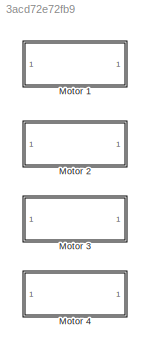
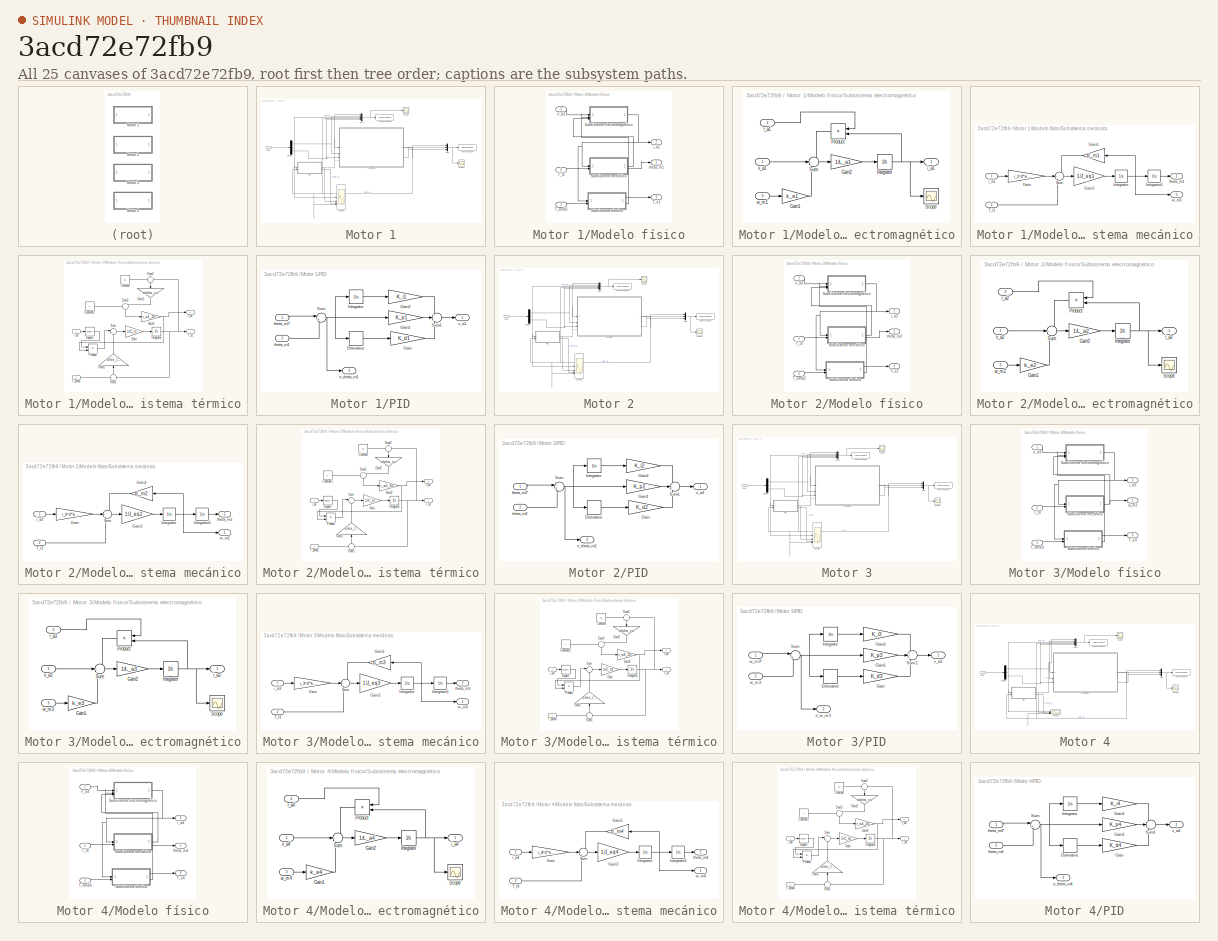
[diagram: thumbnail index - all 25 canvases of the model, root first then tree order]
MODEL slx_3acd72e72fb9
KIND model
CONFIG AbsTol = auto
CONFIG EnableMultiTasking = off
CONFIG FixedStep = auto
CONFIG MaxStep = auto
CONFIG MinStep = auto
CONFIG RelTol = 1e-3
CONFIG SampleTimeConstraint = Unconstrained
CONFIG SolverName = VariableStepAuto
CONFIG StartTime = 0.0
CONFIG StopTime = 10.0
BLOCK [SubSystem] Motor 1
BLOCK [Demux] Motor 1/Demux
  Outputs = 3
BLOCK [Inport] Motor 1/Input
BLOCK [SubSystem] Motor 1/Modelo físico
BLOCK [SubSystem] Motor 1/Modelo físico/Subsistema electromagnético
BLOCK [Gain] Motor 1/Modelo físico/Subsistema electromagnético/Gain1
  Gain = k_e1
BLOCK [Gain] Motor 1/Modelo físico/Subsistema electromagnético/Gain2
  Gain = 1/L_a1
BLOCK [Integrator] Motor 1/Modelo físico/Subsistema electromagnético/Integrator
BLOCK [Product] Motor 1/Modelo físico/Subsistema electromagnético/Product
  NameLocation = top
BLOCK [Scope] Motor 1/Modelo físico/Subsistema electromagnético/Scope
  Floating = off
  NumInputPorts = 1
  ScopeSpecificationString = Simulink.scopes.TimeScopeBlockCfg('CurrentConfiguration', extmgr.ConfigurationSet(extmgr.Configuration('Core','General UI',true),extmgr.Configuration('Core','Source UI',true),extmgr.Configuration('Sources','WiredSimulink',true,'DataLoggingVariableName','ScopeData2'),extmgr.Configuration('Visuals','Time Domain',true,'SerializedDisplays',{struct('MinYLimReal','-23.42473','MaxYLimReal','57.18803','YL...<+1430ch>  <repeated x4 — deduplicated; at blocks: Scope>
BLOCK [Sum] Motor 1/Modelo físico/Subsistema electromagnético/Sum
  Inputs = -+-
BLOCK [Outport] Motor 1/Modelo físico/Subsistema electromagnético/i_a1
BLOCK [Inport] Motor 1/Modelo físico/Subsistema electromagnético/r_a1
  Port = 2
BLOCK [Inport] Motor 1/Modelo físico/Subsistema electromagnético/v_a1
BLOCK [Inport] Motor 1/Modelo físico/Subsistema electromagnético/w_m1
  Port = 3
BLOCK [SubSystem] Motor 1/Modelo físico/Subsistema mecánico
BLOCK [Gain] Motor 1/Modelo físico/Subsistema mecánico/Gain
  Gain = r_1^2*k_t1
BLOCK [Gain] Motor 1/Modelo físico/Subsistema mecánico/Gain1
  Gain = b_m1
  NameLocation = top
BLOCK [Gain] Motor 1/Modelo físico/Subsistema mecánico/Gain3
  Gain = 1/J_eq1
BLOCK [Integrator] Motor 1/Modelo físico/Subsistema mecánico/Integrator
BLOCK [Integrator] Motor 1/Modelo físico/Subsistema mecánico/Integrator1
  InitialCondition = theta_m0_1
BLOCK [Sum] Motor 1/Modelo físico/Subsistema mecánico/Sum
  Inputs = -+-
BLOCK [Inport] Motor 1/Modelo físico/Subsistema mecánico/T_l1
  Port = 2
BLOCK [Inport] Motor 1/Modelo físico/Subsistema mecánico/i_a1
BLOCK [Outport] Motor 1/Modelo físico/Subsistema mecánico/theta_m1
  Port = 2
BLOCK [Outport] Motor 1/Modelo físico/Subsistema mecánico/w_m1
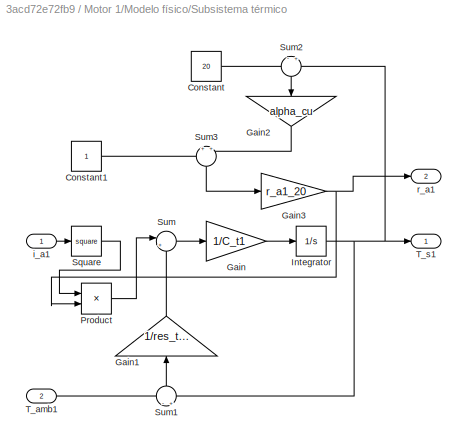
BLOCK [SubSystem] Motor 1/Modelo físico/Subsistema térmico
BLOCK [Constant] Motor 1/Modelo físico/Subsistema térmico/Constant
  Value = 20
BLOCK [Constant] Motor 1/Modelo físico/Subsistema térmico/Constant1
BLOCK [Gain] Motor 1/Modelo físico/Subsistema térmico/Gain
  Gain = 1/C_t1
BLOCK [Gain] Motor 1/Modelo físico/Subsistema térmico/Gain1
  Gain = 1/res_term_1
  NameLocation = right
BLOCK [Gain] Motor 1/Modelo físico/Subsistema térmico/Gain2
  Gain = alpha_cu
  NameLocation = left
BLOCK [Gain] Motor 1/Modelo físico/Subsistema térmico/Gain3
  Gain = r_a1_20
BLOCK [Integrator] Motor 1/Modelo físico/Subsistema térmico/Integrator
  InitialCondition = T_s0_1
BLOCK [Product] Motor 1/Modelo físico/Subsistema térmico/Product
BLOCK [Math] Motor 1/Modelo físico/Subsistema térmico/Square
  Operator = square
BLOCK [Sum] Motor 1/Modelo físico/Subsistema térmico/Sum
  Inputs = |+-
BLOCK [Sum] Motor 1/Modelo físico/Subsistema térmico/Sum1
  Inputs = -|+
  NameLocation = right
BLOCK [Sum] Motor 1/Modelo físico/Subsistema térmico/Sum2
  Inputs = -|+
  NameLocation = left
BLOCK [Sum] Motor 1/Modelo físico/Subsistema térmico/Sum3
  Inputs = +|+
  NameLocation = left
BLOCK [Inport] Motor 1/Modelo físico/Subsistema térmico/T_amb1
  Port = 2
BLOCK [Outport] Motor 1/Modelo físico/Subsistema térmico/T_s1
BLOCK [Inport] Motor 1/Modelo físico/Subsistema térmico/i_a1
BLOCK [Outport] Motor 1/Modelo físico/Subsistema térmico/r_a1
  Port = 2
BLOCK [Inport] Motor 1/Modelo físico/T_amb1
  Port = 3
BLOCK [Inport] Motor 1/Modelo físico/T_l1
  Port = 2
BLOCK [Outport] Motor 1/Modelo físico/T_s1
  Port = 3
BLOCK [Outport] Motor 1/Modelo físico/i_a1
  Port = 2
BLOCK [Outport] Motor 1/Modelo físico/theta_m1
BLOCK [Inport] Motor 1/Modelo físico/v_a1
BLOCK [Mux] Motor 1/Mux
  DisplayOption = bar
  Inputs = 3
BLOCK [Mux] Motor 1/Mux1
  DisplayOption = bar
  Inputs = 5
BLOCK [SubSystem] Motor 1/PID
BLOCK [Derivative] Motor 1/PID/Derivative
BLOCK [Gain] Motor 1/PID/Gain
  Gain = K_d1
BLOCK [Gain] Motor 1/PID/Gain1
  Gain = K_p1
BLOCK [Gain] Motor 1/PID/Gain2
  Gain = K_i1
BLOCK [Integrator] Motor 1/PID/Integrator
BLOCK [Sum] Motor 1/PID/Sum
  Inputs = |+-
BLOCK [Sum] Motor 1/PID/Sum1
  Inputs = +++
BLOCK [Outport] Motor 1/PID/e_theta_m1
  Port = 2
BLOCK [Inport] Motor 1/PID/theta_m1
  Port = 2
BLOCK [Inport] Motor 1/PID/theta_m1*
BLOCK [Outport] Motor 1/PID/v_a1
BLOCK [Scope] Motor 1/Scope
  Floating = off
  NumInputPorts = 1
  ScopeSpecificationString = Simulink.scopes.TimeScopeBlockCfg('CurrentConfiguration', extmgr.ConfigurationSet(extmgr.Configuration('Core','General UI',true),extmgr.Configuration('Core','Source UI',true),extmgr.Configuration('Sources','WiredSimulink',true,'DataLoggingVariableName','ScopeData1'),extmgr.Configuration('Visuals','Time Domain',true,'SerializedDisplays',{struct('MinYLimReal','6.59338','MaxYLimReal','22.19819','YLab...<+1469ch>
BLOCK [Scope] Motor 1/Scope1
  Floating = off
  NumInputPorts = 1
  ScopeSpecificationString = Simulink.scopes.TimeScopeBlockCfg('CurrentConfiguration', extmgr.ConfigurationSet(extmgr.Configuration('Core','General UI',true),extmgr.Configuration('Core','Source UI',true),extmgr.Configuration('Sources','WiredSimulink',true,'DataLoggingVariableName','ScopeData2'),extmgr.Configuration('Visuals','Time Domain',true,'SerializedDisplays',{struct('MinYLimReal','-1748379.89318','MaxYLimReal','15621771...<+1547ch>
BLOCK [Scope] Motor 1/Scope2
  Floating = off
  NumInputPorts = 4
  ScopeSpecificationString = Simulink.scopes.TimeScopeBlockCfg('CurrentConfiguration', extmgr.ConfigurationSet(extmgr.Configuration('Core','General UI',true),extmgr.Configuration('Core','Source UI',true),extmgr.Configuration('Sources','WiredSimulink',true,'DataLoggingVariableName','ScopeData3'),extmgr.Configuration('Visuals','Time Domain',true,'SerializedDisplays',{struct('MinYLimReal','-4731421.02253','MaxYLimReal','22714130...<+1659ch>
BLOCK [ToWorkspace] Motor 1/To Workspace
  FixptAsFi = on
  MaxDataPoints = inf
  SampleTime = -1
  SaveFormat = Timeseries
  VariableName = simulationOut
BLOCK [ToWorkspace] Motor 1/To Workspace1
  FixptAsFi = on
  MaxDataPoints = inf
  SampleTime = -1
  SaveFormat = Timeseries
  VariableName = simulationIn
BLOCK [SubSystem] Motor 2
BLOCK [Demux] Motor 2/Demux
  Outputs = 3
BLOCK [Inport] Motor 2/Input
BLOCK [SubSystem] Motor 2/Modelo físico
BLOCK [SubSystem] Motor 2/Modelo físico/Subsistema electromagnético
BLOCK [Gain] Motor 2/Modelo físico/Subsistema electromagnético/Gain1
  Gain = k_e2
BLOCK [Gain] Motor 2/Modelo físico/Subsistema electromagnético/Gain2
  Gain = 1/L_a2
BLOCK [Integrator] Motor 2/Modelo físico/Subsistema electromagnético/Integrator
BLOCK [Product] Motor 2/Modelo físico/Subsistema electromagnético/Product
  NameLocation = top
BLOCK [Scope] Motor 2/Modelo físico/Subsistema electromagnético/Scope
  Floating = off
  NumInputPorts = 1
BLOCK [Sum] Motor 2/Modelo físico/Subsistema electromagnético/Sum
  Inputs = -+-
BLOCK [Outport] Motor 2/Modelo físico/Subsistema electromagnético/i_a2
BLOCK [Inport] Motor 2/Modelo físico/Subsistema electromagnético/r_a2
  Port = 2
BLOCK [Inport] Motor 2/Modelo físico/Subsistema electromagnético/v_a2
BLOCK [Inport] Motor 2/Modelo físico/Subsistema electromagnético/w_m2
  Port = 3
BLOCK [SubSystem] Motor 2/Modelo físico/Subsistema mecánico
BLOCK [Gain] Motor 2/Modelo físico/Subsistema mecánico/Gain
  Gain = r_2^2*k_t2
BLOCK [Gain] Motor 2/Modelo físico/Subsistema mecánico/Gain1
  Gain = b_m2
  NameLocation = top
BLOCK [Gain] Motor 2/Modelo físico/Subsistema mecánico/Gain3
  Gain = 1/J_eq2
BLOCK [Integrator] Motor 2/Modelo físico/Subsistema mecánico/Integrator
BLOCK [Integrator] Motor 2/Modelo físico/Subsistema mecánico/Integrator1
  InitialCondition = theta_m0_2
BLOCK [Sum] Motor 2/Modelo físico/Subsistema mecánico/Sum
  Inputs = -+-
BLOCK [Inport] Motor 2/Modelo físico/Subsistema mecánico/T_l2
  Port = 2
BLOCK [Inport] Motor 2/Modelo físico/Subsistema mecánico/i_a2
BLOCK [Outport] Motor 2/Modelo físico/Subsistema mecánico/theta_m2
  Port = 2
BLOCK [Outport] Motor 2/Modelo físico/Subsistema mecánico/w_m2
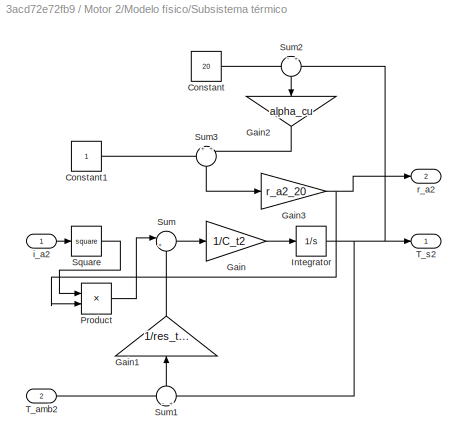
BLOCK [SubSystem] Motor 2/Modelo físico/Subsistema térmico
BLOCK [Constant] Motor 2/Modelo físico/Subsistema térmico/Constant
  Value = 20
BLOCK [Constant] Motor 2/Modelo físico/Subsistema térmico/Constant1
BLOCK [Gain] Motor 2/Modelo físico/Subsistema térmico/Gain
  Gain = 1/C_t2
BLOCK [Gain] Motor 2/Modelo físico/Subsistema térmico/Gain1
  Gain = 1/res_term_2
  NameLocation = right
BLOCK [Gain] Motor 2/Modelo físico/Subsistema térmico/Gain2
  Gain = alpha_cu
  NameLocation = left
BLOCK [Gain] Motor 2/Modelo físico/Subsistema térmico/Gain3
  Gain = r_a2_20
BLOCK [Integrator] Motor 2/Modelo físico/Subsistema térmico/Integrator
  InitialCondition = T_s0_2
BLOCK [Product] Motor 2/Modelo físico/Subsistema térmico/Product
BLOCK [Math] Motor 2/Modelo físico/Subsistema térmico/Square
  Operator = square
BLOCK [Sum] Motor 2/Modelo físico/Subsistema térmico/Sum
  Inputs = |+-
BLOCK [Sum] Motor 2/Modelo físico/Subsistema térmico/Sum1
  Inputs = -|+
  NameLocation = right
BLOCK [Sum] Motor 2/Modelo físico/Subsistema térmico/Sum2
  Inputs = -|+
  NameLocation = left
BLOCK [Sum] Motor 2/Modelo físico/Subsistema térmico/Sum3
  Inputs = +|+
  NameLocation = left
BLOCK [Inport] Motor 2/Modelo físico/Subsistema térmico/T_amb2
  Port = 2
BLOCK [Outport] Motor 2/Modelo físico/Subsistema térmico/T_s2
BLOCK [Inport] Motor 2/Modelo físico/Subsistema térmico/i_a2
BLOCK [Outport] Motor 2/Modelo físico/Subsistema térmico/r_a2
  Port = 2
BLOCK [Inport] Motor 2/Modelo físico/T_amb2
  Port = 3
BLOCK [Inport] Motor 2/Modelo físico/T_l2
  Port = 2
BLOCK [Outport] Motor 2/Modelo físico/T_s2
  Port = 3
BLOCK [Outport] Motor 2/Modelo físico/i_a2
  Port = 2
BLOCK [Outport] Motor 2/Modelo físico/theta_m2
BLOCK [Inport] Motor 2/Modelo físico/v_a2
BLOCK [Mux] Motor 2/Mux
  DisplayOption = bar
  Inputs = 3
BLOCK [Mux] Motor 2/Mux1
  DisplayOption = bar
  Inputs = 5
BLOCK [SubSystem] Motor 2/PID
BLOCK [Derivative] Motor 2/PID/Derivative
BLOCK [Gain] Motor 2/PID/Gain
  Gain = K_d2
BLOCK [Gain] Motor 2/PID/Gain1
  Gain = K_p2
BLOCK [Gain] Motor 2/PID/Gain2
  Gain = K_i2
BLOCK [Integrator] Motor 2/PID/Integrator
BLOCK [Sum] Motor 2/PID/Sum
  Inputs = |+-
BLOCK [Sum] Motor 2/PID/Sum1
  Inputs = +++
BLOCK [Outport] Motor 2/PID/e_theta_m2
  Port = 2
BLOCK [Inport] Motor 2/PID/theta_m2
  Port = 2
BLOCK [Inport] Motor 2/PID/theta_m2*
BLOCK [Outport] Motor 2/PID/v_a2
BLOCK [Scope] Motor 2/Scope
  Floating = off
  NumInputPorts = 1
  ScopeSpecificationString = Simulink.scopes.TimeScopeBlockCfg('CurrentConfiguration', extmgr.ConfigurationSet(extmgr.Configuration('Core','General UI',true),extmgr.Configuration('Core','Source UI',true),extmgr.Configuration('Sources','WiredSimulink',true,'DataLoggingVariableName','ScopeData4'),extmgr.Configuration('Visuals','Time Domain',true,'SerializedDisplays',{struct('MinYLimReal','6.59338','MaxYLimReal','22.19819','YLab...<+1469ch>
BLOCK [Scope] Motor 2/Scope1
  Floating = off
  NumInputPorts = 1
  ScopeSpecificationString = Simulink.scopes.TimeScopeBlockCfg('CurrentConfiguration', extmgr.ConfigurationSet(extmgr.Configuration('Core','General UI',true),extmgr.Configuration('Core','Source UI',true),extmgr.Configuration('Sources','WiredSimulink',true,'DataLoggingVariableName','ScopeData5'),extmgr.Configuration('Visuals','Time Domain',true,'SerializedDisplays',{struct('MinYLimReal','-1748379.89318','MaxYLimReal','15621771...<+1547ch>
BLOCK [Scope] Motor 2/Scope2
  Floating = off
  NumInputPorts = 4
  ScopeSpecificationString = Simulink.scopes.TimeScopeBlockCfg('CurrentConfiguration', extmgr.ConfigurationSet(extmgr.Configuration('Core','General UI',true),extmgr.Configuration('Core','Source UI',true),extmgr.Configuration('Sources','WiredSimulink',true,'DataLoggingVariableName','ScopeData6'),extmgr.Configuration('Visuals','Time Domain',true,'SerializedDisplays',{struct('MinYLimReal','-145131.2899','MaxYLimReal','97316.8510...<+1641ch>
BLOCK [ToWorkspace] Motor 2/To Workspace
  FixptAsFi = on
  MaxDataPoints = inf
  SampleTime = -1
  SaveFormat = Timeseries
  VariableName = simulationOut1
BLOCK [ToWorkspace] Motor 2/To Workspace1
  FixptAsFi = on
  MaxDataPoints = inf
  SampleTime = -1
  SaveFormat = Timeseries
  VariableName = simulationIn1
BLOCK [SubSystem] Motor 3
BLOCK [Demux] Motor 3/Demux
  Outputs = 3
BLOCK [Inport] Motor 3/Input
BLOCK [SubSystem] Motor 3/Modelo físico
BLOCK [SubSystem] Motor 3/Modelo físico/Subsistema electromagnético
BLOCK [Gain] Motor 3/Modelo físico/Subsistema electromagnético/Gain1
  Gain = k_e3
BLOCK [Gain] Motor 3/Modelo físico/Subsistema electromagnético/Gain2
  Gain = 1/L_a3
BLOCK [Integrator] Motor 3/Modelo físico/Subsistema electromagnético/Integrator
BLOCK [Product] Motor 3/Modelo físico/Subsistema electromagnético/Product
  NameLocation = top
BLOCK [Scope] Motor 3/Modelo físico/Subsistema electromagnético/Scope
  Floating = off
  NumInputPorts = 1
BLOCK [Sum] Motor 3/Modelo físico/Subsistema electromagnético/Sum
  Inputs = -+-
BLOCK [Outport] Motor 3/Modelo físico/Subsistema electromagnético/i_a3
BLOCK [Inport] Motor 3/Modelo físico/Subsistema electromagnético/r_a3
  Port = 2
BLOCK [Inport] Motor 3/Modelo físico/Subsistema electromagnético/v_a3
BLOCK [Inport] Motor 3/Modelo físico/Subsistema electromagnético/w_m3
  Port = 3
BLOCK [SubSystem] Motor 3/Modelo físico/Subsistema mecánico
BLOCK [Gain] Motor 3/Modelo físico/Subsistema mecánico/Gain
  Gain = r_3^2*k_t3
BLOCK [Gain] Motor 3/Modelo físico/Subsistema mecánico/Gain1
  Gain = b_m3
  NameLocation = top
BLOCK [Gain] Motor 3/Modelo físico/Subsistema mecánico/Gain3
  Gain = 1/J_eq3
BLOCK [Integrator] Motor 3/Modelo físico/Subsistema mecánico/Integrator
  InitialCondition = w_m3_0
BLOCK [Integrator] Motor 3/Modelo físico/Subsistema mecánico/Integrator1
BLOCK [Sum] Motor 3/Modelo físico/Subsistema mecánico/Sum
  Inputs = -+-
BLOCK [Inport] Motor 3/Modelo físico/Subsistema mecánico/T_l3
  Port = 2
BLOCK [Inport] Motor 3/Modelo físico/Subsistema mecánico/i_a3
BLOCK [Outport] Motor 3/Modelo físico/Subsistema mecánico/theta_m3
  Port = 2
BLOCK [Outport] Motor 3/Modelo físico/Subsistema mecánico/w_m3
BLOCK [SubSystem] Motor 3/Modelo físico/Subsistema térmico
BLOCK [Constant] Motor 3/Modelo físico/Subsistema térmico/Constant
  Value = 20
BLOCK [Constant] Motor 3/Modelo físico/Subsistema térmico/Constant1
BLOCK [Gain] Motor 3/Modelo físico/Subsistema térmico/Gain
  Gain = 1/C_t3
BLOCK [Gain] Motor 3/Modelo físico/Subsistema térmico/Gain1
  Gain = 1/res_term_3
  NameLocation = right
BLOCK [Gain] Motor 3/Modelo físico/Subsistema térmico/Gain2
  Gain = alpha_cu
  NameLocation = left
BLOCK [Gain] Motor 3/Modelo físico/Subsistema térmico/Gain3
  Gain = r_a3_20
BLOCK [Integrator] Motor 3/Modelo físico/Subsistema térmico/Integrator
BLOCK [Product] Motor 3/Modelo físico/Subsistema térmico/Product
BLOCK [Math] Motor 3/Modelo físico/Subsistema térmico/Square
  Operator = square
BLOCK [Sum] Motor 3/Modelo físico/Subsistema térmico/Sum
  Inputs = |+-
BLOCK [Sum] Motor 3/Modelo físico/Subsistema térmico/Sum1
  Inputs = -|+
  NameLocation = right
BLOCK [Sum] Motor 3/Modelo físico/Subsistema térmico/Sum2
  Inputs = -|+
  NameLocation = left
BLOCK [Sum] Motor 3/Modelo físico/Subsistema térmico/Sum3
  Inputs = +|+
  NameLocation = left
BLOCK [Inport] Motor 3/Modelo físico/Subsistema térmico/T_amb3
  Port = 2
BLOCK [Outport] Motor 3/Modelo físico/Subsistema térmico/T_s3
BLOCK [Inport] Motor 3/Modelo físico/Subsistema térmico/i_a3
BLOCK [Outport] Motor 3/Modelo físico/Subsistema térmico/r_a3
  Port = 2
BLOCK [Inport] Motor 3/Modelo físico/T_amb3
  Port = 3
BLOCK [Inport] Motor 3/Modelo físico/T_l3
  Port = 2
BLOCK [Outport] Motor 3/Modelo físico/T_s3
  Port = 3
BLOCK [Outport] Motor 3/Modelo físico/i_a3
  Port = 2
BLOCK [Inport] Motor 3/Modelo físico/v_a3
BLOCK [Outport] Motor 3/Modelo físico/w_m3
BLOCK [Mux] Motor 3/Mux
  DisplayOption = bar
  Inputs = 3
BLOCK [Mux] Motor 3/Mux1
  DisplayOption = bar
  Inputs = 5
BLOCK [SubSystem] Motor 3/PID
BLOCK [Derivative] Motor 3/PID/Derivative
BLOCK [Gain] Motor 3/PID/Gain
  Gain = K_d3
BLOCK [Gain] Motor 3/PID/Gain1
  Gain = K_p3
BLOCK [Gain] Motor 3/PID/Gain2
  Gain = K_i3
BLOCK [Integrator] Motor 3/PID/Integrator
BLOCK [Sum] Motor 3/PID/Sum
  Inputs = |+-
BLOCK [Sum] Motor 3/PID/Sum1
  Inputs = +++
BLOCK [Outport] Motor 3/PID/e_w_m3
  Port = 2
BLOCK [Outport] Motor 3/PID/v_a3
BLOCK [Inport] Motor 3/PID/w_m3
  Port = 2
BLOCK [Inport] Motor 3/PID/w_m3*
BLOCK [Scope] Motor 3/Scope
  Floating = off
  NumInputPorts = 1
  ScopeSpecificationString = Simulink.scopes.TimeScopeBlockCfg('CurrentConfiguration', extmgr.ConfigurationSet(extmgr.Configuration('Core','General UI',true),extmgr.Configuration('Core','Source UI',true),extmgr.Configuration('Sources','WiredSimulink',true,'DataLoggingVariableName','ScopeData7'),extmgr.Configuration('Visuals','Time Domain',true,'SerializedDisplays',{struct('MinYLimReal','6.59338','MaxYLimReal','22.19819','YLab...<+1469ch>
BLOCK [Scope] Motor 3/Scope1
  Floating = off
  NumInputPorts = 1
  ScopeSpecificationString = Simulink.scopes.TimeScopeBlockCfg('CurrentConfiguration', extmgr.ConfigurationSet(extmgr.Configuration('Core','General UI',true),extmgr.Configuration('Core','Source UI',true),extmgr.Configuration('Sources','WiredSimulink',true,'DataLoggingVariableName','ScopeData8'),extmgr.Configuration('Visuals','Time Domain',true,'SerializedDisplays',{struct('MinYLimReal','-13987.64888','MaxYLimReal','125888.839...<+1527ch>
BLOCK [Scope] Motor 3/Scope2
  Floating = off
  NumInputPorts = 4
  ScopeSpecificationString = Simulink.scopes.TimeScopeBlockCfg('CurrentConfiguration', extmgr.ConfigurationSet(extmgr.Configuration('Core','General UI',true),extmgr.Configuration('Core','Source UI',true),extmgr.Configuration('Sources','WiredSimulink',true,'DataLoggingVariableName','ScopeData9'),extmgr.Configuration('Visuals','Time Domain',true,'SerializedDisplays',{struct('MinYLimReal','-214.51675','MaxYLimReal','1929.48446',...<+1587ch>
BLOCK [ToWorkspace] Motor 3/To Workspace
  FixptAsFi = on
  MaxDataPoints = inf
  SampleTime = -1
  SaveFormat = Timeseries
  VariableName = simulationOut2
BLOCK [ToWorkspace] Motor 3/To Workspace1
  FixptAsFi = on
  MaxDataPoints = inf
  SampleTime = -1
  SaveFormat = Timeseries
  VariableName = simulationIn2
BLOCK [SubSystem] Motor 4
BLOCK [Demux] Motor 4/Demux
  Outputs = 3
BLOCK [Inport] Motor 4/Input
BLOCK [SubSystem] Motor 4/Modelo físico
BLOCK [SubSystem] Motor 4/Modelo físico/Subsistema electromagnético
BLOCK [Gain] Motor 4/Modelo físico/Subsistema electromagnético/Gain1
  Gain = k_e4
BLOCK [Gain] Motor 4/Modelo físico/Subsistema electromagnético/Gain2
  Gain = 1/L_a4
BLOCK [Integrator] Motor 4/Modelo físico/Subsistema electromagnético/Integrator
BLOCK [Product] Motor 4/Modelo físico/Subsistema electromagnético/Product
  NameLocation = top
BLOCK [Scope] Motor 4/Modelo físico/Subsistema electromagnético/Scope
  Floating = off
  NumInputPorts = 1
BLOCK [Sum] Motor 4/Modelo físico/Subsistema electromagnético/Sum
  Inputs = -+-
BLOCK [Outport] Motor 4/Modelo físico/Subsistema electromagnético/i_a4
BLOCK [Inport] Motor 4/Modelo físico/Subsistema electromagnético/r_a4
  Port = 2
BLOCK [Inport] Motor 4/Modelo físico/Subsistema electromagnético/v_a4
BLOCK [Inport] Motor 4/Modelo físico/Subsistema electromagnético/w_m4
  Port = 3
BLOCK [SubSystem] Motor 4/Modelo físico/Subsistema mecánico
BLOCK [Gain] Motor 4/Modelo físico/Subsistema mecánico/Gain
  Gain = r_4^2*k_t4
BLOCK [Gain] Motor 4/Modelo físico/Subsistema mecánico/Gain1
  Gain = b_m4
  NameLocation = top
BLOCK [Gain] Motor 4/Modelo físico/Subsistema mecánico/Gain3
  Gain = 1/J_eq4
BLOCK [Integrator] Motor 4/Modelo físico/Subsistema mecánico/Integrator
BLOCK [Integrator] Motor 4/Modelo físico/Subsistema mecánico/Integrator1
  InitialCondition = theta_m4_0
BLOCK [Sum] Motor 4/Modelo físico/Subsistema mecánico/Sum
  Inputs = -+-
BLOCK [Inport] Motor 4/Modelo físico/Subsistema mecánico/T_l4
  Port = 2
BLOCK [Inport] Motor 4/Modelo físico/Subsistema mecánico/i_a4
BLOCK [Outport] Motor 4/Modelo físico/Subsistema mecánico/theta_m4
  Port = 2
BLOCK [Outport] Motor 4/Modelo físico/Subsistema mecánico/w_m4
BLOCK [SubSystem] Motor 4/Modelo físico/Subsistema térmico
BLOCK [Constant] Motor 4/Modelo físico/Subsistema térmico/Constant
  Value = 20
BLOCK [Constant] Motor 4/Modelo físico/Subsistema térmico/Constant1
BLOCK [Gain] Motor 4/Modelo físico/Subsistema térmico/Gain
  Gain = 1/C_t4
BLOCK [Gain] Motor 4/Modelo físico/Subsistema térmico/Gain1
  Gain = 1/res_term_4
  NameLocation = right
BLOCK [Gain] Motor 4/Modelo físico/Subsistema térmico/Gain2
  Gain = alpha_cu
  NameLocation = left
BLOCK [Gain] Motor 4/Modelo físico/Subsistema térmico/Gain3
  Gain = r_a4_20
BLOCK [Integrator] Motor 4/Modelo físico/Subsistema térmico/Integrator
  InitialCondition = T_s4_0
BLOCK [Product] Motor 4/Modelo físico/Subsistema térmico/Product
BLOCK [Math] Motor 4/Modelo físico/Subsistema térmico/Square
  Operator = square
BLOCK [Sum] Motor 4/Modelo físico/Subsistema térmico/Sum
  Inputs = |+-
BLOCK [Sum] Motor 4/Modelo físico/Subsistema térmico/Sum1
  Inputs = -|+
  NameLocation = right
BLOCK [Sum] Motor 4/Modelo físico/Subsistema térmico/Sum2
  Inputs = -|+
  NameLocation = left
BLOCK [Sum] Motor 4/Modelo físico/Subsistema térmico/Sum3
  Inputs = +|+
  NameLocation = left
BLOCK [Inport] Motor 4/Modelo físico/Subsistema térmico/T_amb4
  Port = 2
BLOCK [Outport] Motor 4/Modelo físico/Subsistema térmico/T_s4
BLOCK [Inport] Motor 4/Modelo físico/Subsistema térmico/i_a4
BLOCK [Outport] Motor 4/Modelo físico/Subsistema térmico/r_a4
  Port = 2
BLOCK [Inport] Motor 4/Modelo físico/T_amb4
  Port = 3
BLOCK [Inport] Motor 4/Modelo físico/T_l4
  Port = 2
BLOCK [Outport] Motor 4/Modelo físico/T_s4
  Port = 3
BLOCK [Outport] Motor 4/Modelo físico/i_a4
  Port = 2
BLOCK [Outport] Motor 4/Modelo físico/theta_m4
BLOCK [Inport] Motor 4/Modelo físico/v_a4
BLOCK [Mux] Motor 4/Mux
  DisplayOption = bar
  Inputs = 3
BLOCK [Mux] Motor 4/Mux1
  DisplayOption = bar
  Inputs = 5
BLOCK [SubSystem] Motor 4/PID
BLOCK [Derivative] Motor 4/PID/Derivative
BLOCK [Gain] Motor 4/PID/Gain
  Gain = K_d4
BLOCK [Gain] Motor 4/PID/Gain1
  Gain = K_p4
BLOCK [Gain] Motor 4/PID/Gain2
  Gain = K_i4
BLOCK [Integrator] Motor 4/PID/Integrator
BLOCK [Sum] Motor 4/PID/Sum
  Inputs = |+-
BLOCK [Sum] Motor 4/PID/Sum1
  Inputs = +++
BLOCK [Outport] Motor 4/PID/e_theta_m4
  Port = 2
BLOCK [Inport] Motor 4/PID/theta_m4
  Port = 2
BLOCK [Inport] Motor 4/PID/theta_m4*
BLOCK [Outport] Motor 4/PID/v_a4
BLOCK [Scope] Motor 4/Scope
  Floating = off
  NumInputPorts = 1
  ScopeSpecificationString = Simulink.scopes.TimeScopeBlockCfg('CurrentConfiguration', extmgr.ConfigurationSet(extmgr.Configuration('Core','General UI',true),extmgr.Configuration('Core','Source UI',true),extmgr.Configuration('Sources','WiredSimulink',true,'DataLoggingVariableName','ScopeData10'),extmgr.Configuration('Visuals','Time Domain',true),extmgr.Configuration('Tools','Plot Navigation',true),extmgr.Configuration('Tools'...<+127ch>
BLOCK [Scope] Motor 4/Scope1
  Floating = off
  NumInputPorts = 1
  ScopeSpecificationString = Simulink.scopes.TimeScopeBlockCfg('CurrentConfiguration', extmgr.ConfigurationSet(extmgr.Configuration('Core','General UI',true),extmgr.Configuration('Core','Source UI',true),extmgr.Configuration('Sources','WiredSimulink',true,'DataLoggingVariableName','ScopeData11'),extmgr.Configuration('Visuals','Time Domain',true,'SerializedDisplays',{struct('MinYLimReal','-144.51415','MaxYLimReal','1299.46034'...<+1475ch>
BLOCK [Scope] Motor 4/Scope2
  Floating = off
  NumInputPorts = 4
  ScopeSpecificationString = Simulink.scopes.TimeScopeBlockCfg('CurrentConfiguration', extmgr.ConfigurationSet(extmgr.Configuration('Core','General UI',true),extmgr.Configuration('Core','Source UI',true),extmgr.Configuration('Sources','WiredSimulink',true,'DataLoggingVariableName','ScopeData12'),extmgr.Configuration('Visuals','Time Domain',true,'SerializedDisplays',{struct('MinYLimReal','-392337502.06323','MaxYLimReal','13325...<+1651ch>
BLOCK [ToWorkspace] Motor 4/To Workspace
  FixptAsFi = on
  MaxDataPoints = inf
  SampleTime = -1
  SaveFormat = Timeseries
  VariableName = simulationOut3
BLOCK [ToWorkspace] Motor 4/To Workspace1
  FixptAsFi = on
  MaxDataPoints = inf
  SampleTime = -1
  SaveFormat = Timeseries
  VariableName = simulationIn3
NET Motor 1/Demux:1 -> Motor 1/Modelo físico:2, Motor 1/Mux1:2
NET Motor 1/Demux:2 -> Motor 1/Mux1:3, Motor 1/PID:1, Motor 1/Scope2:1
NET Motor 1/Demux:3 -> Motor 1/Modelo físico:3, Motor 1/Mux1:5
LINE Motor 1/Input:1 -> Motor 1/Demux:1
LINE Motor 1/Modelo físico/Subsistema electromagnético/Gain1:1 -> Motor 1/Modelo físico/Subsistema electromagnético/Sum:3
LINE Motor 1/Modelo físico/Subsistema electromagnético/Gain2:1 -> Motor 1/Modelo físico/Subsistema electromagnético/Integrator:1
NET Motor 1/Modelo físico/Subsistema electromagnético/Integrator:1 -> Motor 1/Modelo físico/Subsistema electromagnético/Product:2, Motor 1/Modelo físico/Subsistema electromagnético/Scope:1, Motor 1/Modelo físico/Subsistema electromagnético/i_a1:1
LINE Motor 1/Modelo físico/Subsistema electromagnético/Product:1 -> Motor 1/Modelo físico/Subsistema electromagnético/Sum:1
LINE Motor 1/Modelo físico/Subsistema electromagnético/Sum:1 -> Motor 1/Modelo físico/Subsistema electromagnético/Gain2:1
LINE Motor 1/Modelo físico/Subsistema electromagnético/r_a1:1 -> Motor 1/Modelo físico/Subsistema electromagnético/Product:1
LINE Motor 1/Modelo físico/Subsistema electromagnético/v_a1:1 -> Motor 1/Modelo físico/Subsistema electromagnético/Sum:2
LINE Motor 1/Modelo físico/Subsistema electromagnético/w_m1:1 -> Motor 1/Modelo físico/Subsistema electromagnético/Gain1:1
NET Motor 1/Modelo físico/Subsistema electromagnético:1 -> Motor 1/Modelo físico/Subsistema mecánico:1, Motor 1/Modelo físico/Subsistema térmico:1, Motor 1/Modelo físico/i_a1:1
LINE Motor 1/Modelo físico/Subsistema mecánico/Gain1:1 -> Motor 1/Modelo físico/Subsistema mecánico/Sum:1
LINE Motor 1/Modelo físico/Subsistema mecánico/Gain3:1 -> Motor 1/Modelo físico/Subsistema mecánico/Integrator:1
LINE Motor 1/Modelo físico/Subsistema mecánico/Gain:1 -> Motor 1/Modelo físico/Subsistema mecánico/Sum:2
LINE Motor 1/Modelo físico/Subsistema mecánico/Integrator1:1 -> Motor 1/Modelo físico/Subsistema mecánico/theta_m1:1
NET Motor 1/Modelo físico/Subsistema mecánico/Integrator:1 -> Motor 1/Modelo físico/Subsistema mecánico/Gain1:1, Motor 1/Modelo físico/Subsistema mecánico/Integrator1:1, Motor 1/Modelo físico/Subsistema mecánico/w_m1:1
LINE Motor 1/Modelo físico/Subsistema mecánico/Sum:1 -> Motor 1/Modelo físico/Subsistema mecánico/Gain3:1
LINE Motor 1/Modelo físico/Subsistema mecánico/T_l1:1 -> Motor 1/Modelo físico/Subsistema mecánico/Sum:3
LINE Motor 1/Modelo físico/Subsistema mecánico/i_a1:1 -> Motor 1/Modelo físico/Subsistema mecánico/Gain:1
LINE Motor 1/Modelo físico/Subsistema mecánico:1 -> Motor 1/Modelo físico/Subsistema electromagnético:3
LINE Motor 1/Modelo físico/Subsistema mecánico:2 -> Motor 1/Modelo físico/theta_m1:1
LINE Motor 1/Modelo físico/Subsistema térmico/Constant1:1 -> Motor 1/Modelo físico/Subsistema térmico/Sum3:1
LINE Motor 1/Modelo físico/Subsistema térmico/Constant:1 -> Motor 1/Modelo físico/Subsistema térmico/Sum2:1
LINE Motor 1/Modelo físico/Subsistema térmico/Gain1:1 -> Motor 1/Modelo físico/Subsistema térmico/Sum:2
LINE Motor 1/Modelo físico/Subsistema térmico/Gain2:1 -> Motor 1/Modelo físico/Subsistema térmico/Sum3:2
NET Motor 1/Modelo físico/Subsistema térmico/Gain3:1 -> Motor 1/Modelo físico/Subsistema térmico/Product:2, Motor 1/Modelo físico/Subsistema térmico/r_a1:1
LINE Motor 1/Modelo físico/Subsistema térmico/Gain:1 -> Motor 1/Modelo físico/Subsistema térmico/Integrator:1
NET Motor 1/Modelo físico/Subsistema térmico/Integrator:1 -> Motor 1/Modelo físico/Subsistema térmico/Sum1:2, Motor 1/Modelo físico/Subsistema térmico/Sum2:2, Motor 1/Modelo físico/Subsistema térmico/T_s1:1
LINE Motor 1/Modelo físico/Subsistema térmico/Product:1 -> Motor 1/Modelo físico/Subsistema térmico/Sum:1
LINE Motor 1/Modelo físico/Subsistema térmico/Square:1 -> Motor 1/Modelo físico/Subsistema térmico/Product:1
LINE Motor 1/Modelo físico/Subsistema térmico/Sum1:1 -> Motor 1/Modelo físico/Subsistema térmico/Gain1:1
LINE Motor 1/Modelo físico/Subsistema térmico/Sum2:1 -> Motor 1/Modelo físico/Subsistema térmico/Gain2:1
LINE Motor 1/Modelo físico/Subsistema térmico/Sum3:1 -> Motor 1/Modelo físico/Subsistema térmico/Gain3:1
LINE Motor 1/Modelo físico/Subsistema térmico/Sum:1 -> Motor 1/Modelo físico/Subsistema térmico/Gain:1
LINE Motor 1/Modelo físico/Subsistema térmico/T_amb1:1 -> Motor 1/Modelo físico/Subsistema térmico/Sum1:1
LINE Motor 1/Modelo físico/Subsistema térmico/i_a1:1 -> Motor 1/Modelo físico/Subsistema térmico/Square:1
LINE Motor 1/Modelo físico/Subsistema térmico:1 -> Motor 1/Modelo físico/T_s1:1
LINE Motor 1/Modelo físico/Subsistema térmico:2 -> Motor 1/Modelo físico/Subsistema electromagnético:2
LINE Motor 1/Modelo físico/T_amb1:1 -> Motor 1/Modelo físico/Subsistema térmico:2
LINE Motor 1/Modelo físico/T_l1:1 -> Motor 1/Modelo físico/Subsistema mecánico:2
LINE Motor 1/Modelo físico/v_a1:1 -> Motor 1/Modelo físico/Subsistema electromagnético:1
NET Motor 1/Modelo físico:1 -> Motor 1/Mux1:4, Motor 1/Mux:1, Motor 1/PID:2, Motor 1/Scope2:4
LINE Motor 1/Modelo físico:2 -> Motor 1/Mux:2
LINE Motor 1/Modelo físico:3 -> Motor 1/Mux:3
NET Motor 1/Mux1:1 -> Motor 1/Scope:1, Motor 1/To Workspace1:1
NET Motor 1/Mux:1 -> Motor 1/Scope1:1, Motor 1/To Workspace:1
LINE Motor 1/PID/Derivative:1 -> Motor 1/PID/Gain:1
LINE Motor 1/PID/Gain1:1 -> Motor 1/PID/Sum1:2
LINE Motor 1/PID/Gain2:1 -> Motor 1/PID/Sum1:1
LINE Motor 1/PID/Gain:1 -> Motor 1/PID/Sum1:3
LINE Motor 1/PID/Integrator:1 -> Motor 1/PID/Gain2:1
LINE Motor 1/PID/Sum1:1 -> Motor 1/PID/v_a1:1
NET Motor 1/PID/Sum:1 -> Motor 1/PID/Derivative:1, Motor 1/PID/Gain1:1, Motor 1/PID/Integrator:1, Motor 1/PID/e_theta_m1:1
LINE Motor 1/PID/theta_m1*:1 -> Motor 1/PID/Sum:1
LINE Motor 1/PID/theta_m1:1 -> Motor 1/PID/Sum:2
NET Motor 1/PID:1 -> Motor 1/Modelo físico:1, Motor 1/Mux1:1, Motor 1/Scope2:2
LINE Motor 1/PID:2 -> Motor 1/Scope2:3
NET Motor 2/Demux:1 -> Motor 2/Modelo físico:2, Motor 2/Mux1:2
NET Motor 2/Demux:2 -> Motor 2/Mux1:3, Motor 2/PID:1, Motor 2/Scope2:1
NET Motor 2/Demux:3 -> Motor 2/Modelo físico:3, Motor 2/Mux1:5
LINE Motor 2/Input:1 -> Motor 2/Demux:1
LINE Motor 2/Modelo físico/Subsistema electromagnético/Gain1:1 -> Motor 2/Modelo físico/Subsistema electromagnético/Sum:3
LINE Motor 2/Modelo físico/Subsistema electromagnético/Gain2:1 -> Motor 2/Modelo físico/Subsistema electromagnético/Integrator:1
NET Motor 2/Modelo físico/Subsistema electromagnético/Integrator:1 -> Motor 2/Modelo físico/Subsistema electromagnético/Product:2, Motor 2/Modelo físico/Subsistema electromagnético/Scope:1, Motor 2/Modelo físico/Subsistema electromagnético/i_a2:1
LINE Motor 2/Modelo físico/Subsistema electromagnético/Product:1 -> Motor 2/Modelo físico/Subsistema electromagnético/Sum:1
LINE Motor 2/Modelo físico/Subsistema electromagnético/Sum:1 -> Motor 2/Modelo físico/Subsistema electromagnético/Gain2:1
LINE Motor 2/Modelo físico/Subsistema electromagnético/r_a2:1 -> Motor 2/Modelo físico/Subsistema electromagnético/Product:1
LINE Motor 2/Modelo físico/Subsistema electromagnético/v_a2:1 -> Motor 2/Modelo físico/Subsistema electromagnético/Sum:2
LINE Motor 2/Modelo físico/Subsistema electromagnético/w_m2:1 -> Motor 2/Modelo físico/Subsistema electromagnético/Gain1:1
NET Motor 2/Modelo físico/Subsistema electromagnético:1 -> Motor 2/Modelo físico/Subsistema mecánico:1, Motor 2/Modelo físico/Subsistema térmico:1, Motor 2/Modelo físico/i_a2:1
LINE Motor 2/Modelo físico/Subsistema mecánico/Gain1:1 -> Motor 2/Modelo físico/Subsistema mecánico/Sum:1
LINE Motor 2/Modelo físico/Subsistema mecánico/Gain3:1 -> Motor 2/Modelo físico/Subsistema mecánico/Integrator:1
LINE Motor 2/Modelo físico/Subsistema mecánico/Gain:1 -> Motor 2/Modelo físico/Subsistema mecánico/Sum:2
LINE Motor 2/Modelo físico/Subsistema mecánico/Integrator1:1 -> Motor 2/Modelo físico/Subsistema mecánico/theta_m2:1
NET Motor 2/Modelo físico/Subsistema mecánico/Integrator:1 -> Motor 2/Modelo físico/Subsistema mecánico/Gain1:1, Motor 2/Modelo físico/Subsistema mecánico/Integrator1:1, Motor 2/Modelo físico/Subsistema mecánico/w_m2:1
LINE Motor 2/Modelo físico/Subsistema mecánico/Sum:1 -> Motor 2/Modelo físico/Subsistema mecánico/Gain3:1
LINE Motor 2/Modelo físico/Subsistema mecánico/T_l2:1 -> Motor 2/Modelo físico/Subsistema mecánico/Sum:3
LINE Motor 2/Modelo físico/Subsistema mecánico/i_a2:1 -> Motor 2/Modelo físico/Subsistema mecánico/Gain:1
LINE Motor 2/Modelo físico/Subsistema mecánico:1 -> Motor 2/Modelo físico/Subsistema electromagnético:3
LINE Motor 2/Modelo físico/Subsistema mecánico:2 -> Motor 2/Modelo físico/theta_m2:1
LINE Motor 2/Modelo físico/Subsistema térmico/Constant1:1 -> Motor 2/Modelo físico/Subsistema térmico/Sum3:1
LINE Motor 2/Modelo físico/Subsistema térmico/Constant:1 -> Motor 2/Modelo físico/Subsistema térmico/Sum2:1
LINE Motor 2/Modelo físico/Subsistema térmico/Gain1:1 -> Motor 2/Modelo físico/Subsistema térmico/Sum:2
LINE Motor 2/Modelo físico/Subsistema térmico/Gain2:1 -> Motor 2/Modelo físico/Subsistema térmico/Sum3:2
NET Motor 2/Modelo físico/Subsistema térmico/Gain3:1 -> Motor 2/Modelo físico/Subsistema térmico/Product:2, Motor 2/Modelo físico/Subsistema térmico/r_a2:1
LINE Motor 2/Modelo físico/Subsistema térmico/Gain:1 -> Motor 2/Modelo físico/Subsistema térmico/Integrator:1
NET Motor 2/Modelo físico/Subsistema térmico/Integrator:1 -> Motor 2/Modelo físico/Subsistema térmico/Sum1:2, Motor 2/Modelo físico/Subsistema térmico/Sum2:2, Motor 2/Modelo físico/Subsistema térmico/T_s2:1
LINE Motor 2/Modelo físico/Subsistema térmico/Product:1 -> Motor 2/Modelo físico/Subsistema térmico/Sum:1
LINE Motor 2/Modelo físico/Subsistema térmico/Square:1 -> Motor 2/Modelo físico/Subsistema térmico/Product:1
LINE Motor 2/Modelo físico/Subsistema térmico/Sum1:1 -> Motor 2/Modelo físico/Subsistema térmico/Gain1:1
LINE Motor 2/Modelo físico/Subsistema térmico/Sum2:1 -> Motor 2/Modelo físico/Subsistema térmico/Gain2:1
LINE Motor 2/Modelo físico/Subsistema térmico/Sum3:1 -> Motor 2/Modelo físico/Subsistema térmico/Gain3:1
LINE Motor 2/Modelo físico/Subsistema térmico/Sum:1 -> Motor 2/Modelo físico/Subsistema térmico/Gain:1
LINE Motor 2/Modelo físico/Subsistema térmico/T_amb2:1 -> Motor 2/Modelo físico/Subsistema térmico/Sum1:1
LINE Motor 2/Modelo físico/Subsistema térmico/i_a2:1 -> Motor 2/Modelo físico/Subsistema térmico/Square:1
LINE Motor 2/Modelo físico/Subsistema térmico:1 -> Motor 2/Modelo físico/T_s2:1
LINE Motor 2/Modelo físico/Subsistema térmico:2 -> Motor 2/Modelo físico/Subsistema electromagnético:2
LINE Motor 2/Modelo físico/T_amb2:1 -> Motor 2/Modelo físico/Subsistema térmico:2
LINE Motor 2/Modelo físico/T_l2:1 -> Motor 2/Modelo físico/Subsistema mecánico:2
LINE Motor 2/Modelo físico/v_a2:1 -> Motor 2/Modelo físico/Subsistema electromagnético:1
NET Motor 2/Modelo físico:1 -> Motor 2/Mux1:4, Motor 2/Mux:1, Motor 2/PID:2, Motor 2/Scope2:4
LINE Motor 2/Modelo físico:2 -> Motor 2/Mux:2
LINE Motor 2/Modelo físico:3 -> Motor 2/Mux:3
NET Motor 2/Mux1:1 -> Motor 2/Scope:1, Motor 2/To Workspace1:1
NET Motor 2/Mux:1 -> Motor 2/Scope1:1, Motor 2/To Workspace:1
LINE Motor 2/PID/Derivative:1 -> Motor 2/PID/Gain:1
LINE Motor 2/PID/Gain1:1 -> Motor 2/PID/Sum1:2
LINE Motor 2/PID/Gain2:1 -> Motor 2/PID/Sum1:1
LINE Motor 2/PID/Gain:1 -> Motor 2/PID/Sum1:3
LINE Motor 2/PID/Integrator:1 -> Motor 2/PID/Gain2:1
LINE Motor 2/PID/Sum1:1 -> Motor 2/PID/v_a2:1
NET Motor 2/PID/Sum:1 -> Motor 2/PID/Derivative:1, Motor 2/PID/Gain1:1, Motor 2/PID/Integrator:1, Motor 2/PID/e_theta_m2:1
LINE Motor 2/PID/theta_m2*:1 -> Motor 2/PID/Sum:1
LINE Motor 2/PID/theta_m2:1 -> Motor 2/PID/Sum:2
NET Motor 2/PID:1 -> Motor 2/Modelo físico:1, Motor 2/Mux1:1, Motor 2/Scope2:2
LINE Motor 2/PID:2 -> Motor 2/Scope2:3
NET Motor 3/Demux:1 -> Motor 3/Modelo físico:2, Motor 3/Mux1:2
NET Motor 3/Demux:2 -> Motor 3/Mux1:3, Motor 3/PID:1, Motor 3/Scope2:1
NET Motor 3/Demux:3 -> Motor 3/Modelo físico:3, Motor 3/Mux1:5
LINE Motor 3/Input:1 -> Motor 3/Demux:1
LINE Motor 3/Modelo físico/Subsistema electromagnético/Gain1:1 -> Motor 3/Modelo físico/Subsistema electromagnético/Sum:3
LINE Motor 3/Modelo físico/Subsistema electromagnético/Gain2:1 -> Motor 3/Modelo físico/Subsistema electromagnético/Integrator:1
NET Motor 3/Modelo físico/Subsistema electromagnético/Integrator:1 -> Motor 3/Modelo físico/Subsistema electromagnético/Product:2, Motor 3/Modelo físico/Subsistema electromagnético/Scope:1, Motor 3/Modelo físico/Subsistema electromagnético/i_a3:1
LINE Motor 3/Modelo físico/Subsistema electromagnético/Product:1 -> Motor 3/Modelo físico/Subsistema electromagnético/Sum:1
LINE Motor 3/Modelo físico/Subsistema electromagnético/Sum:1 -> Motor 3/Modelo físico/Subsistema electromagnético/Gain2:1
LINE Motor 3/Modelo físico/Subsistema electromagnético/r_a3:1 -> Motor 3/Modelo físico/Subsistema electromagnético/Product:1
LINE Motor 3/Modelo físico/Subsistema electromagnético/v_a3:1 -> Motor 3/Modelo físico/Subsistema electromagnético/Sum:2
LINE Motor 3/Modelo físico/Subsistema electromagnético/w_m3:1 -> Motor 3/Modelo físico/Subsistema electromagnético/Gain1:1
NET Motor 3/Modelo físico/Subsistema electromagnético:1 -> Motor 3/Modelo físico/Subsistema mecánico:1, Motor 3/Modelo físico/Subsistema térmico:1, Motor 3/Modelo físico/i_a3:1
LINE Motor 3/Modelo físico/Subsistema mecánico/Gain1:1 -> Motor 3/Modelo físico/Subsistema mecánico/Sum:1
LINE Motor 3/Modelo físico/Subsistema mecánico/Gain3:1 -> Motor 3/Modelo físico/Subsistema mecánico/Integrator:1
LINE Motor 3/Modelo físico/Subsistema mecánico/Gain:1 -> Motor 3/Modelo físico/Subsistema mecánico/Sum:2
LINE Motor 3/Modelo físico/Subsistema mecánico/Integrator1:1 -> Motor 3/Modelo físico/Subsistema mecánico/theta_m3:1
NET Motor 3/Modelo físico/Subsistema mecánico/Integrator:1 -> Motor 3/Modelo físico/Subsistema mecánico/Gain1:1, Motor 3/Modelo físico/Subsistema mecánico/Integrator1:1, Motor 3/Modelo físico/Subsistema mecánico/w_m3:1
LINE Motor 3/Modelo físico/Subsistema mecánico/Sum:1 -> Motor 3/Modelo físico/Subsistema mecánico/Gain3:1
LINE Motor 3/Modelo físico/Subsistema mecánico/T_l3:1 -> Motor 3/Modelo físico/Subsistema mecánico/Sum:3
LINE Motor 3/Modelo físico/Subsistema mecánico/i_a3:1 -> Motor 3/Modelo físico/Subsistema mecánico/Gain:1
NET Motor 3/Modelo físico/Subsistema mecánico:1 -> Motor 3/Modelo físico/Subsistema electromagnético:3, Motor 3/Modelo físico/w_m3:1
LINE Motor 3/Modelo físico/Subsistema térmico/Constant1:1 -> Motor 3/Modelo físico/Subsistema térmico/Sum3:1
LINE Motor 3/Modelo físico/Subsistema térmico/Constant:1 -> Motor 3/Modelo físico/Subsistema térmico/Sum2:1
LINE Motor 3/Modelo físico/Subsistema térmico/Gain1:1 -> Motor 3/Modelo físico/Subsistema térmico/Sum:2
LINE Motor 3/Modelo físico/Subsistema térmico/Gain2:1 -> Motor 3/Modelo físico/Subsistema térmico/Sum3:2
NET Motor 3/Modelo físico/Subsistema térmico/Gain3:1 -> Motor 3/Modelo físico/Subsistema térmico/Product:2, Motor 3/Modelo físico/Subsistema térmico/r_a3:1
LINE Motor 3/Modelo físico/Subsistema térmico/Gain:1 -> Motor 3/Modelo físico/Subsistema térmico/Integrator:1
NET Motor 3/Modelo físico/Subsistema térmico/Integrator:1 -> Motor 3/Modelo físico/Subsistema térmico/Sum1:2, Motor 3/Modelo físico/Subsistema térmico/Sum2:2, Motor 3/Modelo físico/Subsistema térmico/T_s3:1
LINE Motor 3/Modelo físico/Subsistema térmico/Product:1 -> Motor 3/Modelo físico/Subsistema térmico/Sum:1
LINE Motor 3/Modelo físico/Subsistema térmico/Square:1 -> Motor 3/Modelo físico/Subsistema térmico/Product:1
LINE Motor 3/Modelo físico/Subsistema térmico/Sum1:1 -> Motor 3/Modelo físico/Subsistema térmico/Gain1:1
LINE Motor 3/Modelo físico/Subsistema térmico/Sum2:1 -> Motor 3/Modelo físico/Subsistema térmico/Gain2:1
LINE Motor 3/Modelo físico/Subsistema térmico/Sum3:1 -> Motor 3/Modelo físico/Subsistema térmico/Gain3:1
LINE Motor 3/Modelo físico/Subsistema térmico/Sum:1 -> Motor 3/Modelo físico/Subsistema térmico/Gain:1
LINE Motor 3/Modelo físico/Subsistema térmico/T_amb3:1 -> Motor 3/Modelo físico/Subsistema térmico/Sum1:1
LINE Motor 3/Modelo físico/Subsistema térmico/i_a3:1 -> Motor 3/Modelo físico/Subsistema térmico/Square:1
LINE Motor 3/Modelo físico/Subsistema térmico:1 -> Motor 3/Modelo físico/T_s3:1
LINE Motor 3/Modelo físico/Subsistema térmico:2 -> Motor 3/Modelo físico/Subsistema electromagnético:2
LINE Motor 3/Modelo físico/T_amb3:1 -> Motor 3/Modelo físico/Subsistema térmico:2
LINE Motor 3/Modelo físico/T_l3:1 -> Motor 3/Modelo físico/Subsistema mecánico:2
LINE Motor 3/Modelo físico/v_a3:1 -> Motor 3/Modelo físico/Subsistema electromagnético:1
NET Motor 3/Modelo físico:1 -> Motor 3/Mux1:4, Motor 3/Mux:1, Motor 3/PID:2, Motor 3/Scope2:4
LINE Motor 3/Modelo físico:2 -> Motor 3/Mux:2
LINE Motor 3/Modelo físico:3 -> Motor 3/Mux:3
NET Motor 3/Mux1:1 -> Motor 3/Scope:1, Motor 3/To Workspace1:1
NET Motor 3/Mux:1 -> Motor 3/Scope1:1, Motor 3/To Workspace:1
LINE Motor 3/PID/Derivative:1 -> Motor 3/PID/Gain:1
LINE Motor 3/PID/Gain1:1 -> Motor 3/PID/Sum1:2
LINE Motor 3/PID/Gain2:1 -> Motor 3/PID/Sum1:1
LINE Motor 3/PID/Gain:1 -> Motor 3/PID/Sum1:3
LINE Motor 3/PID/Integrator:1 -> Motor 3/PID/Gain2:1
LINE Motor 3/PID/Sum1:1 -> Motor 3/PID/v_a3:1
NET Motor 3/PID/Sum:1 -> Motor 3/PID/Derivative:1, Motor 3/PID/Gain1:1, Motor 3/PID/Integrator:1, Motor 3/PID/e_w_m3:1
LINE Motor 3/PID/w_m3*:1 -> Motor 3/PID/Sum:1
LINE Motor 3/PID/w_m3:1 -> Motor 3/PID/Sum:2
NET Motor 3/PID:1 -> Motor 3/Modelo físico:1, Motor 3/Mux1:1, Motor 3/Scope2:2
LINE Motor 3/PID:2 -> Motor 3/Scope2:3
NET Motor 4/Demux:1 -> Motor 4/Modelo físico:2, Motor 4/Mux1:2
NET Motor 4/Demux:2 -> Motor 4/Mux1:3, Motor 4/PID:1, Motor 4/Scope2:1
NET Motor 4/Demux:3 -> Motor 4/Modelo físico:3, Motor 4/Mux1:5
LINE Motor 4/Input:1 -> Motor 4/Demux:1
LINE Motor 4/Modelo físico/Subsistema electromagnético/Gain1:1 -> Motor 4/Modelo físico/Subsistema electromagnético/Sum:3
LINE Motor 4/Modelo físico/Subsistema electromagnético/Gain2:1 -> Motor 4/Modelo físico/Subsistema electromagnético/Integrator:1
NET Motor 4/Modelo físico/Subsistema electromagnético/Integrator:1 -> Motor 4/Modelo físico/Subsistema electromagnético/Product:2, Motor 4/Modelo físico/Subsistema electromagnético/Scope:1, Motor 4/Modelo físico/Subsistema electromagnético/i_a4:1
LINE Motor 4/Modelo físico/Subsistema electromagnético/Product:1 -> Motor 4/Modelo físico/Subsistema electromagnético/Sum:1
LINE Motor 4/Modelo físico/Subsistema electromagnético/Sum:1 -> Motor 4/Modelo físico/Subsistema electromagnético/Gain2:1
LINE Motor 4/Modelo físico/Subsistema electromagnético/r_a4:1 -> Motor 4/Modelo físico/Subsistema electromagnético/Product:1
LINE Motor 4/Modelo físico/Subsistema electromagnético/v_a4:1 -> Motor 4/Modelo físico/Subsistema electromagnético/Sum:2
LINE Motor 4/Modelo físico/Subsistema electromagnético/w_m4:1 -> Motor 4/Modelo físico/Subsistema electromagnético/Gain1:1
NET Motor 4/Modelo físico/Subsistema electromagnético:1 -> Motor 4/Modelo físico/Subsistema mecánico:1, Motor 4/Modelo físico/Subsistema térmico:1, Motor 4/Modelo físico/i_a4:1
LINE Motor 4/Modelo físico/Subsistema mecánico/Gain1:1 -> Motor 4/Modelo físico/Subsistema mecánico/Sum:1
LINE Motor 4/Modelo físico/Subsistema mecánico/Gain3:1 -> Motor 4/Modelo físico/Subsistema mecánico/Integrator:1
LINE Motor 4/Modelo físico/Subsistema mecánico/Gain:1 -> Motor 4/Modelo físico/Subsistema mecánico/Sum:2
LINE Motor 4/Modelo físico/Subsistema mecánico/Integrator1:1 -> Motor 4/Modelo físico/Subsistema mecánico/theta_m4:1
NET Motor 4/Modelo físico/Subsistema mecánico/Integrator:1 -> Motor 4/Modelo físico/Subsistema mecánico/Gain1:1, Motor 4/Modelo físico/Subsistema mecánico/Integrator1:1, Motor 4/Modelo físico/Subsistema mecánico/w_m4:1
LINE Motor 4/Modelo físico/Subsistema mecánico/Sum:1 -> Motor 4/Modelo físico/Subsistema mecánico/Gain3:1
LINE Motor 4/Modelo físico/Subsistema mecánico/T_l4:1 -> Motor 4/Modelo físico/Subsistema mecánico/Sum:3
LINE Motor 4/Modelo físico/Subsistema mecánico/i_a4:1 -> Motor 4/Modelo físico/Subsistema mecánico/Gain:1
LINE Motor 4/Modelo físico/Subsistema mecánico:1 -> Motor 4/Modelo físico/Subsistema electromagnético:3
LINE Motor 4/Modelo físico/Subsistema mecánico:2 -> Motor 4/Modelo físico/theta_m4:1
LINE Motor 4/Modelo físico/Subsistema térmico/Constant1:1 -> Motor 4/Modelo físico/Subsistema térmico/Sum3:1
LINE Motor 4/Modelo físico/Subsistema térmico/Constant:1 -> Motor 4/Modelo físico/Subsistema térmico/Sum2:1
LINE Motor 4/Modelo físico/Subsistema térmico/Gain1:1 -> Motor 4/Modelo físico/Subsistema térmico/Sum:2
LINE Motor 4/Modelo físico/Subsistema térmico/Gain2:1 -> Motor 4/Modelo físico/Subsistema térmico/Sum3:2
NET Motor 4/Modelo físico/Subsistema térmico/Gain3:1 -> Motor 4/Modelo físico/Subsistema térmico/Product:2, Motor 4/Modelo físico/Subsistema térmico/r_a4:1
LINE Motor 4/Modelo físico/Subsistema térmico/Gain:1 -> Motor 4/Modelo físico/Subsistema térmico/Integrator:1
NET Motor 4/Modelo físico/Subsistema térmico/Integrator:1 -> Motor 4/Modelo físico/Subsistema térmico/Sum1:2, Motor 4/Modelo físico/Subsistema térmico/Sum2:2, Motor 4/Modelo físico/Subsistema térmico/T_s4:1
LINE Motor 4/Modelo físico/Subsistema térmico/Product:1 -> Motor 4/Modelo físico/Subsistema térmico/Sum:1
LINE Motor 4/Modelo físico/Subsistema térmico/Square:1 -> Motor 4/Modelo físico/Subsistema térmico/Product:1
LINE Motor 4/Modelo físico/Subsistema térmico/Sum1:1 -> Motor 4/Modelo físico/Subsistema térmico/Gain1:1
LINE Motor 4/Modelo físico/Subsistema térmico/Sum2:1 -> Motor 4/Modelo físico/Subsistema térmico/Gain2:1
LINE Motor 4/Modelo físico/Subsistema térmico/Sum3:1 -> Motor 4/Modelo físico/Subsistema térmico/Gain3:1
LINE Motor 4/Modelo físico/Subsistema térmico/Sum:1 -> Motor 4/Modelo físico/Subsistema térmico/Gain:1
LINE Motor 4/Modelo físico/Subsistema térmico/T_amb4:1 -> Motor 4/Modelo físico/Subsistema térmico/Sum1:1
LINE Motor 4/Modelo físico/Subsistema térmico/i_a4:1 -> Motor 4/Modelo físico/Subsistema térmico/Square:1
LINE Motor 4/Modelo físico/Subsistema térmico:1 -> Motor 4/Modelo físico/T_s4:1
LINE Motor 4/Modelo físico/Subsistema térmico:2 -> Motor 4/Modelo físico/Subsistema electromagnético:2
LINE Motor 4/Modelo físico/T_amb4:1 -> Motor 4/Modelo físico/Subsistema térmico:2
LINE Motor 4/Modelo físico/T_l4:1 -> Motor 4/Modelo físico/Subsistema mecánico:2
LINE Motor 4/Modelo físico/v_a4:1 -> Motor 4/Modelo físico/Subsistema electromagnético:1
NET Motor 4/Modelo físico:1 -> Motor 4/Mux1:4, Motor 4/Mux:1, Motor 4/PID:2, Motor 4/Scope2:4
LINE Motor 4/Modelo físico:2 -> Motor 4/Mux:2
LINE Motor 4/Modelo físico:3 -> Motor 4/Mux:3
NET Motor 4/Mux1:1 -> Motor 4/Scope:1, Motor 4/To Workspace1:1
NET Motor 4/Mux:1 -> Motor 4/Scope1:1, Motor 4/To Workspace:1
LINE Motor 4/PID/Derivative:1 -> Motor 4/PID/Gain:1
LINE Motor 4/PID/Gain1:1 -> Motor 4/PID/Sum1:2
LINE Motor 4/PID/Gain2:1 -> Motor 4/PID/Sum1:1
LINE Motor 4/PID/Gain:1 -> Motor 4/PID/Sum1:3
LINE Motor 4/PID/Integrator:1 -> Motor 4/PID/Gain2:1
LINE Motor 4/PID/Sum1:1 -> Motor 4/PID/v_a4:1
NET Motor 4/PID/Sum:1 -> Motor 4/PID/Derivative:1, Motor 4/PID/Gain1:1, Motor 4/PID/Integrator:1, Motor 4/PID/e_theta_m4:1
LINE Motor 4/PID/theta_m4*:1 -> Motor 4/PID/Sum:1
LINE Motor 4/PID/theta_m4:1 -> Motor 4/PID/Sum:2
NET Motor 4/PID:1 -> Motor 4/Modelo físico:1, Motor 4/Mux1:1, Motor 4/Scope2:2
LINE Motor 4/PID:2 -> Motor 4/Scope2:3
note: NET lines group one-source signal fan-out (src -> all destinations, sorted); 1:1 wires keep LINE
